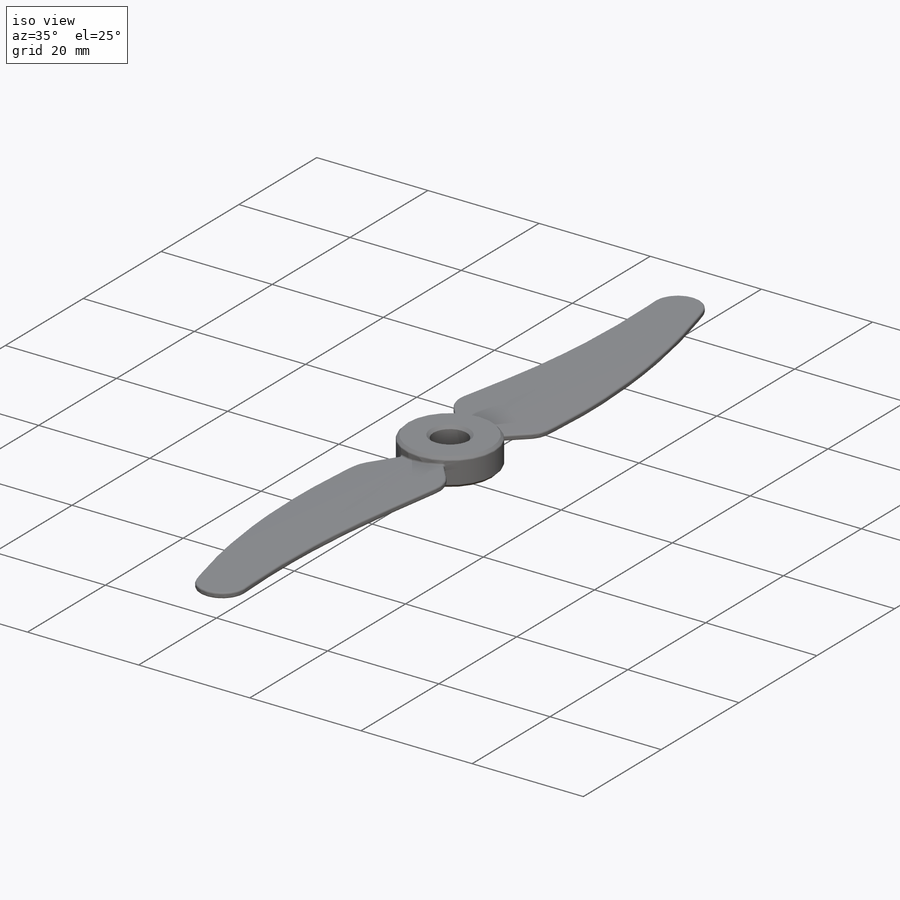
[diagram: iso view]
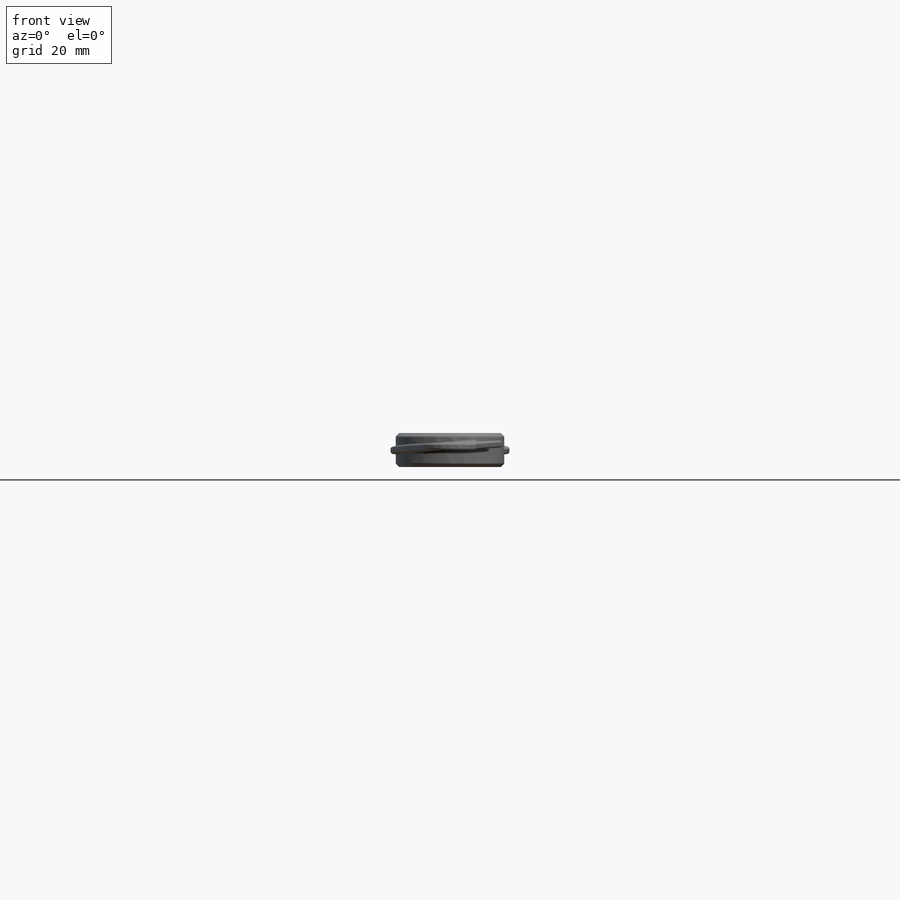
[diagram: front view]
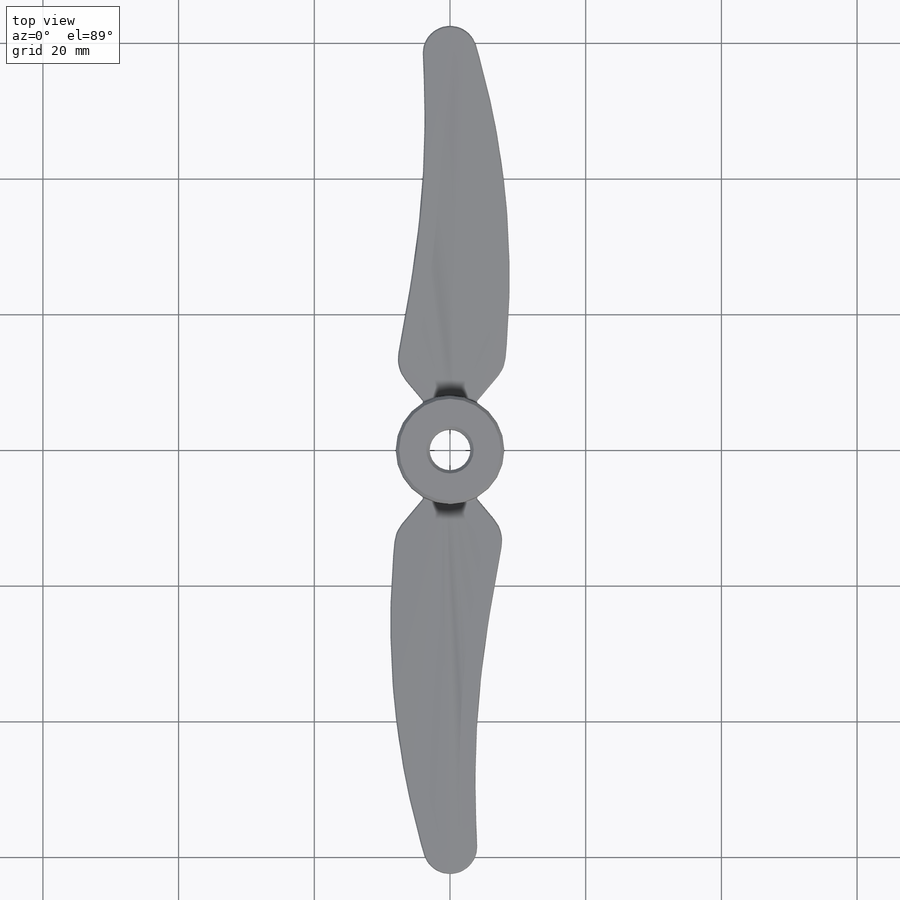
[diagram: top view]
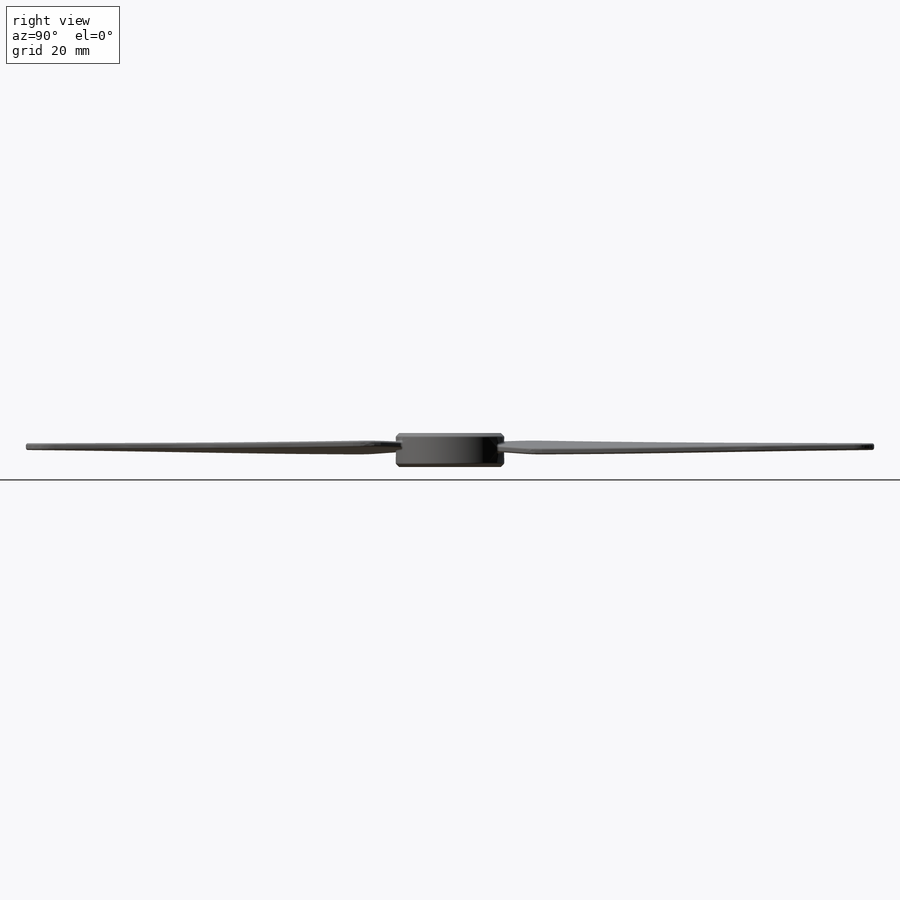
[diagram: right view]
SOLIDWORKS PART (.sldprt)
format: sldprt  version: not decoded by parser v0  size: 694,784 bytes
history: native  units: mm
features: sketch x5, fillet x3, material x1, extrude x1, plane x1, pattern_circular x1, boolean_combine x1, chamfer x1 (+13 scaffold rows collapsed)
feature tree (27):
  scaffold x13  (default folders/planes/origin — collapsed)
  material  "PC High Viscosity"
  sketch  "Sketch1"  dims[D1=6.0mm D2=16.0mm]
  extrude  "Boss-Extrude1"  Depth=5mm
  sketch  "Sketch2"  dims[D1=125.0mm]
  sketch  "Sketch3"  dims[c1.D1=1.5mm c1.D2=1.5mm c1.D3=125.0mm c2.D1=~20.053904mm c3.D1=5.0deg c3.D2=30.0mm c3.D3=~1.192664mm c3.D4=~1.192664mm c3.D5=0.5mm]
  plane  "Plane1"
  sketch  "Sketch4"  dims[D1=0.5mm D2=35.0mm]
  sketch  "Sketch5"  dims[c1.D3=4.0mm c1.D4=120.0mm c1.D5=150.0mm c1.D1=~5.365378mm c2.D1=80.0deg c2.D2=16.0mm c2.D3=20.0mm c2.D6=4.0mm c2.D7=~7.465944mm c3.D7=80.0deg c3.D1=0.5mm c4.D1=1.0mm]
  fillet  "Fillet1"  Radius=5mm
  fillet  "Fillet2"  Radius=0.3mm
  pattern_circular  "CirPattern1"  Count=2 Angle=360deg
  boolean_combine  "Combine2"
  chamfer  "Chamfer1"  Distance=0.5mm Angle=45deg
  fillet  "Fillet6"  Radius=0.3mm
decode coverage: 11 of 12 modeling features carry decoded parameters
note: ~ marks probable driven/reference dimensions
note: suppression state not decoded; provenance and decode notes live in map.json
